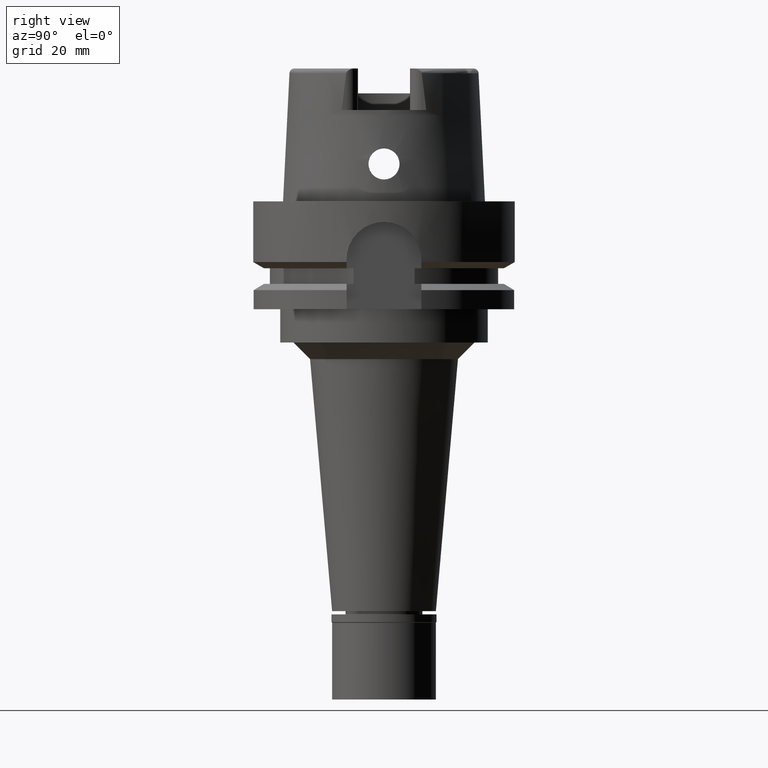
[diagram: clean part render]
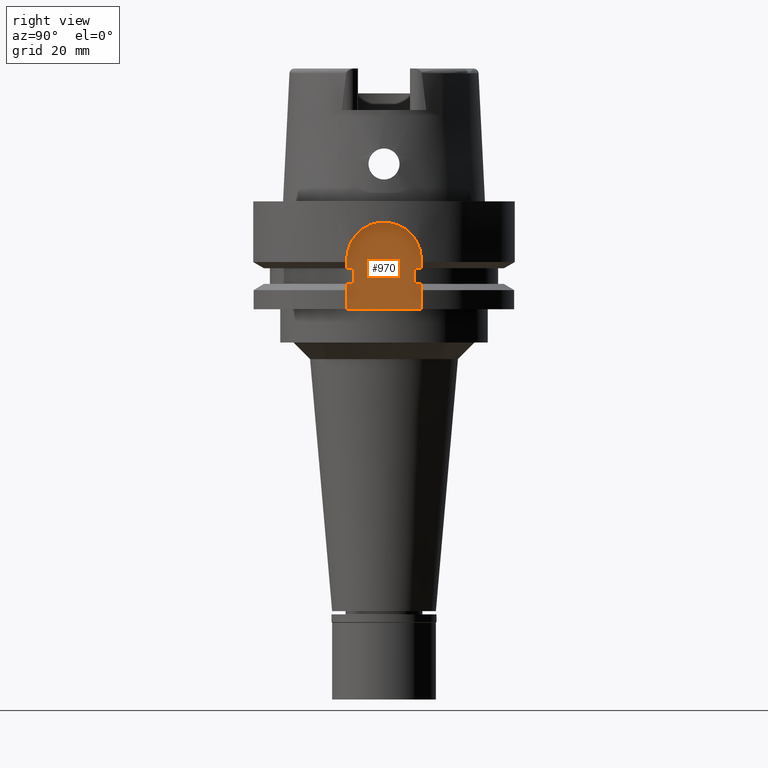
[diagram: same view with one face highlighted and labeled with its STEP entity id]
A machine part, right view. The second image highlights one B-rep face of the part: STEP entity #970.
In plain terms, the highlighted planar face has unit normal (1, 0, 0).
Its self-contained STEP definition (entity closure, byte-faithful):
#220 = VERTEX_POINT ( 'NONE', #3626 ) ;
#242 = LINE ( 'NONE', #3263, #5271 ) ;
#275 = CARTESIAN_POINT ( 'NONE',  ( 26.50000000000000000, 9.000000000000000000, -26.00000000000000000 ) ) ;
#277 = LINE ( 'NONE', #310, #1894 ) ;
#310 = CARTESIAN_POINT ( 'NONE',  ( 26.50000000000000000, -9.000000000000000000, -26.00000000000000000 ) ) ;
#439 = DIRECTION ( 'NONE',  ( 0.0000000000000000000, 0.0000000000000000000, 1.000000000000000000 ) ) ;
#452 = VERTEX_POINT ( 'NONE', #4318 ) ;
#607 = VERTEX_POINT ( 'NONE', #5304 ) ;
#639 = CARTESIAN_POINT ( 'NONE',  ( 26.50000000000000000, 0.0000000000000000000, -14.00000000000000000 ) ) ;
#672 = VECTOR ( 'NONE', #4961, 1000.000000000000000 ) ;
#723 = FACE_OUTER_BOUND ( 'NONE', #4780, .T. ) ;
#765 = VERTEX_POINT ( 'NONE', #275 ) ;
#768 = EDGE_CURVE ( 'NONE', #3286, #607, #5332, .T. ) ;
#833 = ORIENTED_EDGE ( 'NONE', *, *, #2068, .T. ) ;
#841 = VERTEX_POINT ( 'NONE', #3327 ) ;
#857 = CARTESIAN_POINT ( 'NONE',  ( 26.50000000000000000, -9.000000000000000000, -16.12500000000000000 ) ) ;
#931 = ORIENTED_EDGE ( 'NONE', *, *, #1851, .F. ) ;
#970 = ADVANCED_FACE ( 'NONE', ( #723 ), #1480, .T. ) ;
#988 = CARTESIAN_POINT ( 'NONE',  ( 26.50000000000000000, -9.000000000000000000, -26.00000000000000000 ) ) ;
#1035 = EDGE_CURVE ( 'NONE', #3593, #841, #3376, .T. ) ;
#1056 = EDGE_CURVE ( 'NONE', #452, #765, #4687, .T. ) ;
#1114 = CARTESIAN_POINT ( 'NONE',  ( 26.50000000000000000, 7.348469228349999938, -16.12500000000000000 ) ) ;
#1159 = DIRECTION ( 'NONE',  ( 1.000000000000000000, 0.0000000000000000000, 0.0000000000000000000 ) ) ;
#1202 = LINE ( 'NONE', #2076, #4729 ) ;
#1390 = ORIENTED_EDGE ( 'NONE', *, *, #2798, .F. ) ;
#1395 = DIRECTION ( 'NONE',  ( -2.366280491871000116E-14, 1.000000000000000000, 0.0000000000000000000 ) ) ;
#1448 = CARTESIAN_POINT ( 'NONE',  ( 26.50000000000000000, 9.000000000000000000, -14.00000000000000000 ) ) ;
#1480 = PLANE ( 'NONE',  #1645 ) ;
#1503 = LINE ( 'NONE', #4942, #2610 ) ;
#1551 = DIRECTION ( 'NONE',  ( -2.366280491871000116E-14, 1.000000000000000000, 0.0000000000000000000 ) ) ;
#1602 = EDGE_CURVE ( 'NONE', #3636, #3650, #1503, .T. ) ;
#1634 = EDGE_CURVE ( 'NONE', #3636, #452, #242, .T. ) ;
#1645 = AXIS2_PLACEMENT_3D ( 'NONE', #4967, #1159, #2326 ) ;
#1682 = ORIENTED_EDGE ( 'NONE', *, *, #4366, .T. ) ;
#1710 = VECTOR ( 'NONE', #1395, 1000.000000000000000 ) ;
#1768 = EDGE_CURVE ( 'NONE', #2971, #765, #4381, .T. ) ;
#1851 = EDGE_CURVE ( 'NONE', #5228, #220, #2188, .T. ) ;
#1861 = CARTESIAN_POINT ( 'NONE',  ( 26.50000000000000000, -9.000000000000000000, -19.87500000000000000 ) ) ;
#1894 = VECTOR ( 'NONE', #2415, 1000.000000000000000 ) ;
#1993 = VECTOR ( 'NONE', #2983, 1000.000000000000000 ) ;
#2068 = EDGE_CURVE ( 'NONE', #2632, #220, #2428, .T. ) ;
#2076 = CARTESIAN_POINT ( 'NONE',  ( 26.50000000000000000, -9.000000000000000000, -16.12500000000000000 ) ) ;
#2188 = LINE ( 'NONE', #1861, #1710 ) ;
#2281 = EDGE_CURVE ( 'NONE', #3650, #607, #5333, .T. ) ;
#2326 = DIRECTION ( 'NONE',  ( 0.0000000000000000000, 1.000000000000000000, 0.0000000000000000000 ) ) ;
#2415 = DIRECTION ( 'NONE',  ( 0.0000000000000000000, 0.0000000000000000000, 1.000000000000000000 ) ) ;
#2428 = LINE ( 'NONE', #4213, #672 ) ;
#2430 = ORIENTED_EDGE ( 'NONE', *, *, #768, .F. ) ;
#2456 = CARTESIAN_POINT ( 'NONE',  ( 26.50000000000000000, -9.000000000000000000, -26.00000000000000000 ) ) ;
#2508 = VECTOR ( 'NONE', #5364, 1000.000000000000000 ) ;
#2610 = VECTOR ( 'NONE', #5379, 1000.000000000000000 ) ;
#2624 = ORIENTED_EDGE ( 'NONE', *, *, #2281, .T. ) ;
#2632 = VERTEX_POINT ( 'NONE', #3464 ) ;
#2716 = DIRECTION ( 'NONE',  ( 0.0000000000000000000, 0.0000000000000000000, 1.000000000000000000 ) ) ;
#2798 = EDGE_CURVE ( 'NONE', #841, #3286, #3002, .T. ) ;
#2961 = VECTOR ( 'NONE', #4304, 1000.000000000000000 ) ;
#2971 = VERTEX_POINT ( 'NONE', #2456 ) ;
#2983 = DIRECTION ( 'NONE',  ( 0.0000000000000000000, 0.0000000000000000000, -1.000000000000000000 ) ) ;
#3002 = CIRCLE ( 'NONE', #3446, 9.000000000000000000 ) ;
#3221 = DIRECTION ( 'NONE',  ( 2.366280491871000116E-14, 1.000000000000000000, 0.0000000000000000000 ) ) ;
#3263 = CARTESIAN_POINT ( 'NONE',  ( 26.50000000000000000, 7.348469228349999938, -19.87500000000000000 ) ) ;
#3286 = VERTEX_POINT ( 'NONE', #1448 ) ;
#3327 = CARTESIAN_POINT ( 'NONE',  ( 26.50000000000000000, -9.000000000000000000, -14.00000000000000000 ) ) ;
#3376 = LINE ( 'NONE', #857, #4382 ) ;
#3446 = AXIS2_PLACEMENT_3D ( 'NONE', #639, #4833, #2716 ) ;
#3464 = CARTESIAN_POINT ( 'NONE',  ( 26.50000000000000000, -7.348469228349999938, -16.12500000000000000 ) ) ;
#3467 = VECTOR ( 'NONE', #3221, 1000.000000000000000 ) ;
#3549 = CARTESIAN_POINT ( 'NONE',  ( 26.50000000000000000, -9.000000000000000000, -19.87500000000000000 ) ) ;
#3593 = VERTEX_POINT ( 'NONE', #5042 ) ;
#3626 = CARTESIAN_POINT ( 'NONE',  ( 26.50000000000000000, -7.348469228349999938, -19.87500000000000000 ) ) ;
#3636 = VERTEX_POINT ( 'NONE', #5425 ) ;
#3650 = VERTEX_POINT ( 'NONE', #3843 ) ;
#3671 = CARTESIAN_POINT ( 'NONE',  ( 26.50000000000000000, 9.000000000000000000, -14.00000000000000000 ) ) ;
#3746 = ORIENTED_EDGE ( 'NONE', *, *, #4868, .F. ) ;
#3773 = CARTESIAN_POINT ( 'NONE',  ( 26.50000000000000000, 9.000000000000000000, -19.87500000000000000 ) ) ;
#3843 = CARTESIAN_POINT ( 'NONE',  ( 26.50000000000000000, 7.348469228349999938, -16.12500000000000000 ) ) ;
#4031 = ORIENTED_EDGE ( 'NONE', *, *, #1602, .T. ) ;
#4032 = ORIENTED_EDGE ( 'NONE', *, *, #1056, .F. ) ;
#4213 = CARTESIAN_POINT ( 'NONE',  ( 26.50000000000000000, -7.348469228349999938, -16.12500000000000000 ) ) ;
#4304 = DIRECTION ( 'NONE',  ( 0.0000000000000000000, 1.000000000000000000, 0.0000000000000000000 ) ) ;
#4318 = CARTESIAN_POINT ( 'NONE',  ( 26.50000000000000000, 9.000000000000000000, -19.87500000000000000 ) ) ;
#4366 = EDGE_CURVE ( 'NONE', #3593, #2632, #1202, .T. ) ;
#4381 = LINE ( 'NONE', #988, #2961 ) ;
#4382 = VECTOR ( 'NONE', #439, 1000.000000000000000 ) ;
#4482 = ORIENTED_EDGE ( 'NONE', *, *, #1634, .F. ) ;
#4497 = DIRECTION ( 'NONE',  ( 2.366280491871000116E-14, 1.000000000000000000, 0.0000000000000000000 ) ) ;
#4559 = ORIENTED_EDGE ( 'NONE', *, *, #1768, .T. ) ;
#4687 = LINE ( 'NONE', #3773, #1993 ) ;
#4729 = VECTOR ( 'NONE', #1551, 1000.000000000000000 ) ;
#4780 = EDGE_LOOP ( 'NONE', ( #4032, #4482, #4031, #2624, #2430, #1390, #4828, #1682, #833, #931, #3746, #4559 ) ) ;
#4828 = ORIENTED_EDGE ( 'NONE', *, *, #1035, .F. ) ;
#4833 = DIRECTION ( 'NONE',  ( -1.000000000000000000, 0.0000000000000000000, 0.0000000000000000000 ) ) ;
#4868 = EDGE_CURVE ( 'NONE', #2971, #5228, #277, .T. ) ;
#4942 = CARTESIAN_POINT ( 'NONE',  ( 26.50000000000000000, 7.348469228349999938, -19.87500000000000000 ) ) ;
#4961 = DIRECTION ( 'NONE',  ( 0.0000000000000000000, 0.0000000000000000000, -1.000000000000000000 ) ) ;
#4967 = CARTESIAN_POINT ( 'NONE',  ( 26.50000000000000000, 0.0000000000000000000, 0.0000000000000000000 ) ) ;
#5042 = CARTESIAN_POINT ( 'NONE',  ( 26.50000000000000000, -9.000000000000000000, -16.12500000000000000 ) ) ;
#5228 = VERTEX_POINT ( 'NONE', #3549 ) ;
#5271 = VECTOR ( 'NONE', #4497, 1000.000000000000000 ) ;
#5304 = CARTESIAN_POINT ( 'NONE',  ( 26.50000000000000000, 9.000000000000000000, -16.12500000000000000 ) ) ;
#5332 = LINE ( 'NONE', #3671, #2508 ) ;
#5333 = LINE ( 'NONE', #1114, #3467 ) ;
#5364 = DIRECTION ( 'NONE',  ( 0.0000000000000000000, 0.0000000000000000000, -1.000000000000000000 ) ) ;
#5379 = DIRECTION ( 'NONE',  ( 0.0000000000000000000, 0.0000000000000000000, 1.000000000000000000 ) ) ;
#5425 = CARTESIAN_POINT ( 'NONE',  ( 26.50000000000000000, 7.348469228349999938, -19.87500000000000000 ) ) ;